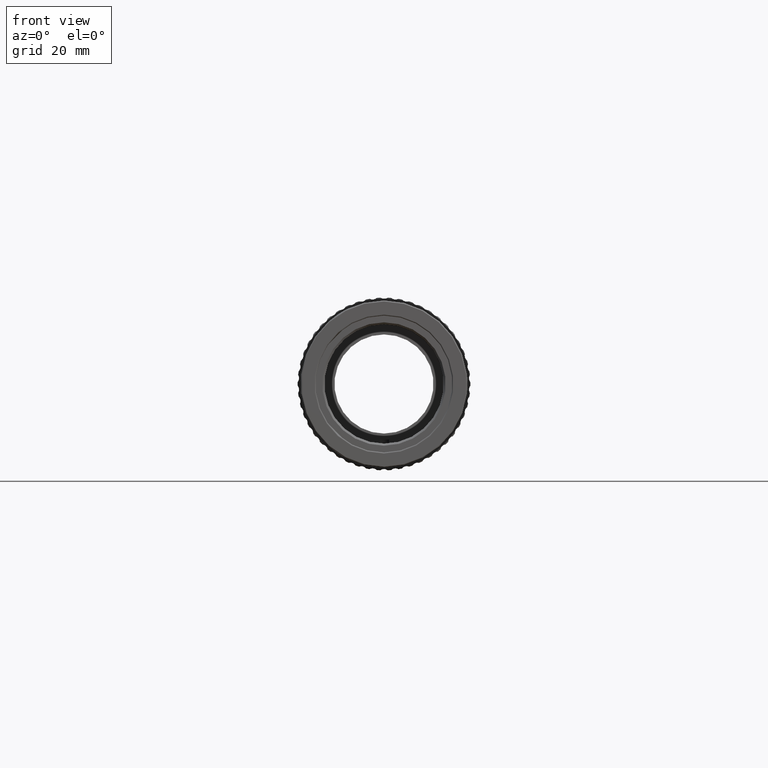
[diagram: clean part render]
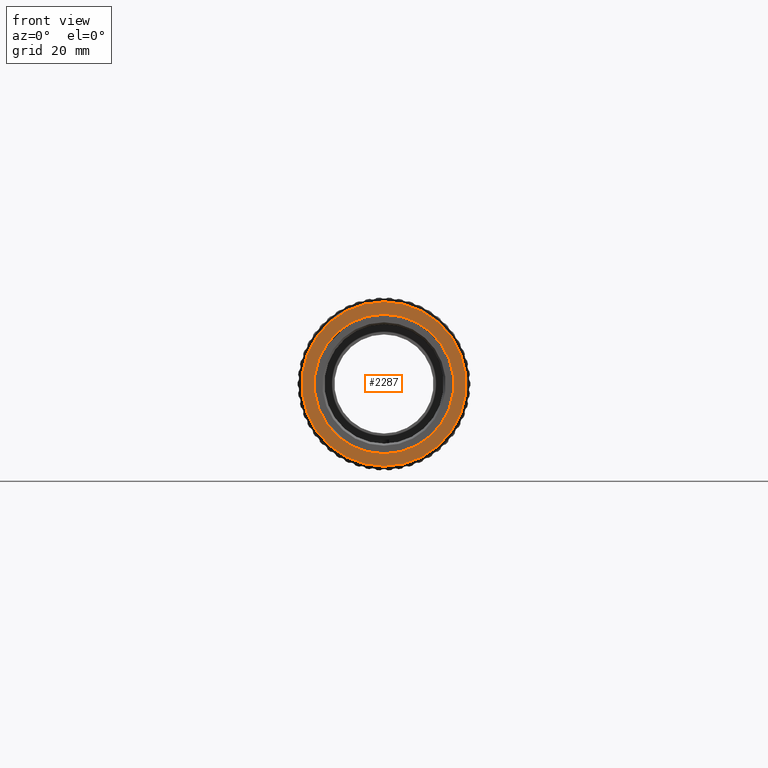
[diagram: same view with one face highlighted and labeled with its STEP entity id]
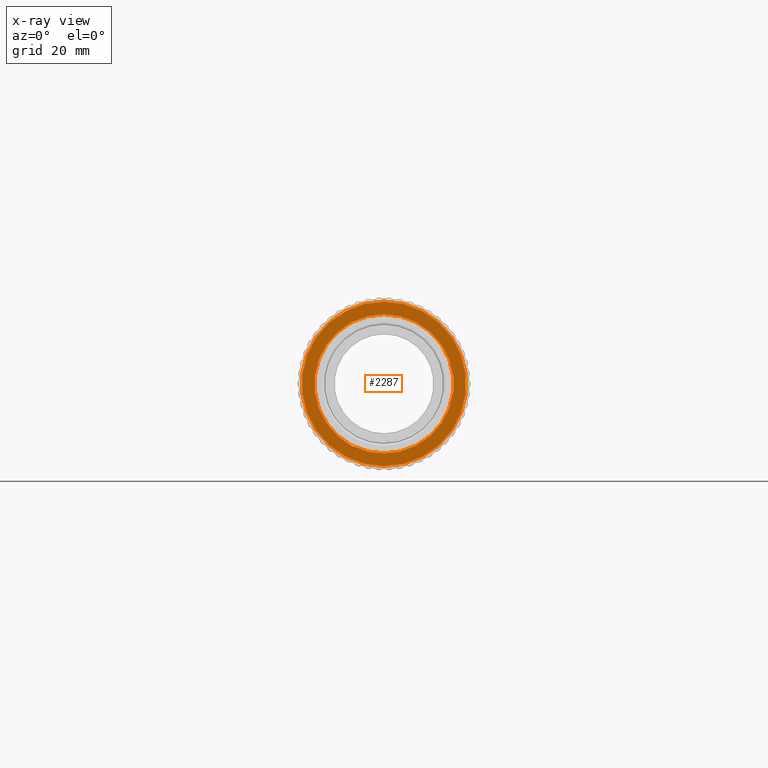
[diagram: x-ray of the same camera — body ghosted, the highlighted face saturated]
A machine part, front view. The second image highlights one B-rep face of the part: STEP entity #2287.
The next image is the same camera in x-ray: the body ghosted, the highlighted face saturated — about 0% of this face is hidden behind the body in this view.
In plain terms, the highlighted planar face has unit normal (0, -1, -0).
Its self-contained STEP definition (entity closure, byte-faithful):
#665 = EDGE_CURVE ( 'NONE', #9649, #9649, #6182, .T. ) ;
#1613 = CARTESIAN_POINT ( 'NONE',  ( -83.32263811662116400, -29.71294781569414000, 0.0000000000000000000 ) ) ;
#2047 = ORIENTED_EDGE ( 'NONE', *, *, #665, .F. ) ;
#2287 = ADVANCED_FACE ( 'NONE', ( #4794, #5448 ), #9733, .T. ) ;
#2668 = DIRECTION ( 'NONE',  ( 0.0000000000000000000, 0.0000000000000000000, -1.000000000000000000 ) ) ;
#3512 = VERTEX_POINT ( 'NONE', #13335 ) ;
#4635 = DIRECTION ( 'NONE',  ( 0.0000000000000000000, 0.0000000000000000000, -1.000000000000000000 ) ) ;
#4787 = CARTESIAN_POINT ( 'NONE',  ( -66.37263811662133200, -29.71294781569405100, 0.0000000000000000000 ) ) ;
#4794 = FACE_OUTER_BOUND ( 'NONE', #6709, .T. ) ;
#4857 = DIRECTION ( 'NONE',  ( -0.0000000000000000000, -1.000000000000000000, -0.0000000000000000000 ) ) ;
#5448 = FACE_BOUND ( 'NONE', #10028, .T. ) ;
#6182 = CIRCLE ( 'NONE', #13204, 16.94999999999981800 ) ;
#6709 = EDGE_LOOP ( 'NONE', ( #10820 ) ) ;
#6779 = AXIS2_PLACEMENT_3D ( 'NONE', #1613, #9015, #2668 ) ;
#6830 = CARTESIAN_POINT ( 'NONE',  ( -83.32263811662116400, -29.71294781569396200, 0.0000000000000000000 ) ) ;
#7261 = DIRECTION ( 'NONE',  ( 0.0000000000000000000, 0.0000000000000000000, -1.000000000000000000 ) ) ;
#8234 = CARTESIAN_POINT ( 'NONE',  ( -83.32263811662116400, -29.71294781569396200, -16.94999999999981800 ) ) ;
#8876 = CIRCLE ( 'NONE', #6779, 20.00000000000000400 ) ;
#9015 = DIRECTION ( 'NONE',  ( -0.0000000000000000000, -1.000000000000000000, -0.0000000000000000000 ) ) ;
#9649 = VERTEX_POINT ( 'NONE', #8234 ) ;
#9733 = PLANE ( 'NONE',  #11889 ) ;
#10028 = EDGE_LOOP ( 'NONE', ( #2047 ) ) ;
#10820 = ORIENTED_EDGE ( 'NONE', *, *, #11628, .T. ) ;
#11628 = EDGE_CURVE ( 'NONE', #3512, #3512, #8876, .T. ) ;
#11889 = AXIS2_PLACEMENT_3D ( 'NONE', #4787, #13307, #7261 ) ;
#13204 = AXIS2_PLACEMENT_3D ( 'NONE', #6830, #4857, #4635 ) ;
#13307 = DIRECTION ( 'NONE',  ( 0.0000000000000000000, -1.000000000000000000, -0.0000000000000000000 ) ) ;
#13335 = CARTESIAN_POINT ( 'NONE',  ( -83.32263811662116400, -29.71294781569414000, -20.00000000000000400 ) ) ;